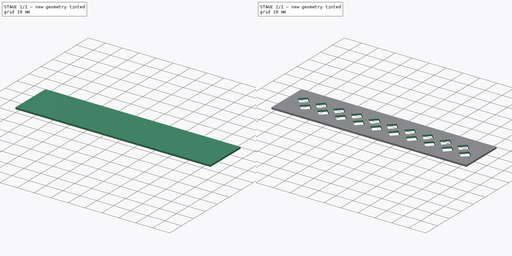
[diagram: build sequence overview — one tinted view per stage of 2, left to right]
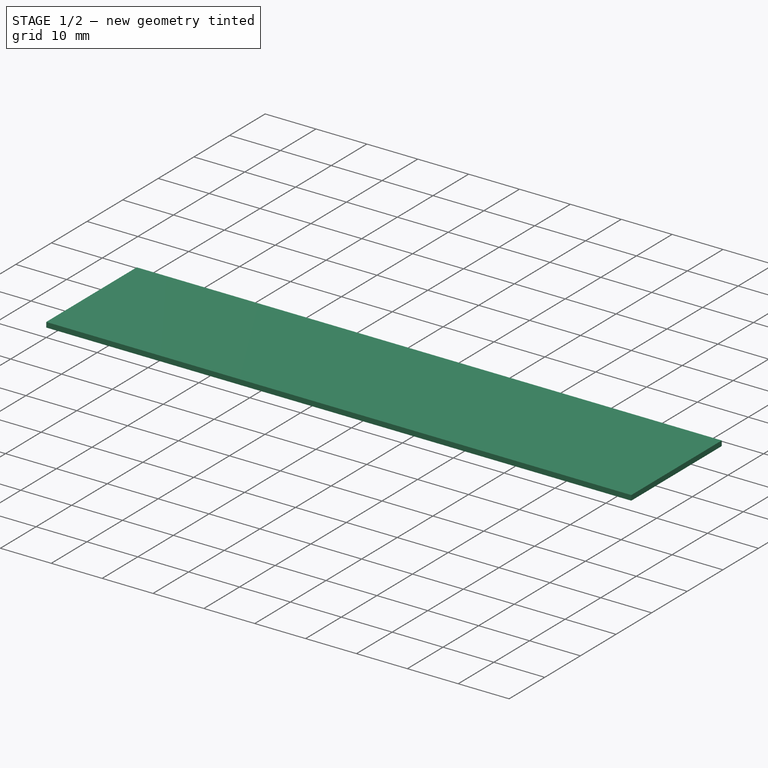
[diagram: stage 1 of 2 — iso view after this stage's code; geometry added in this stage tinted green]
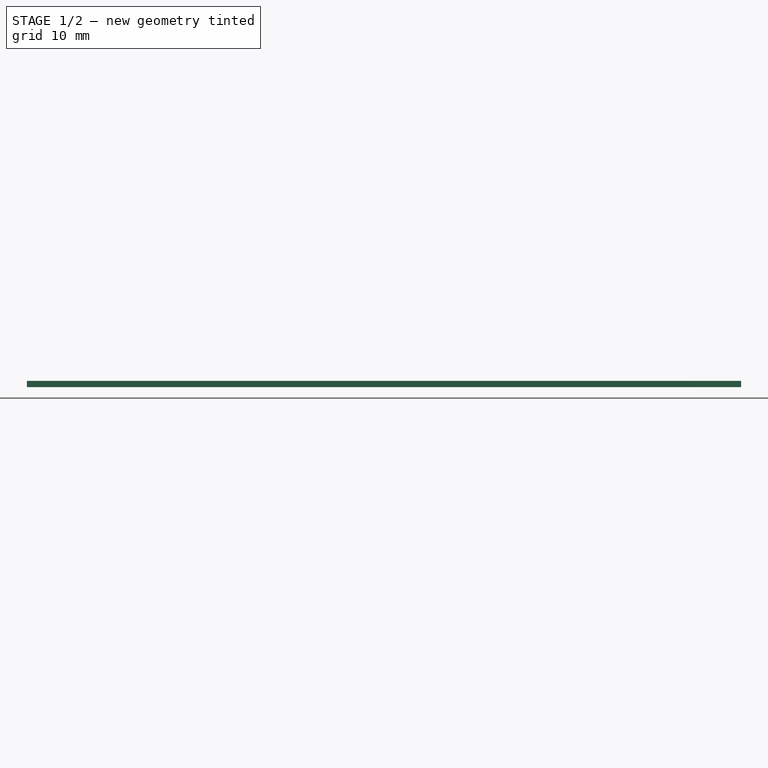
[diagram: stage 1 of 2 — front view after this stage's code; geometry added in this stage tinted green]
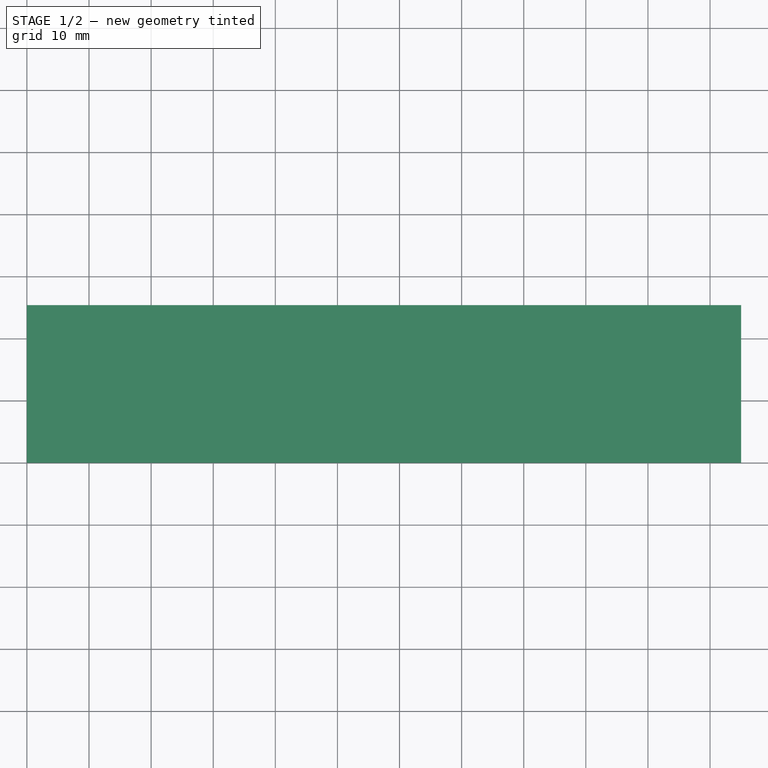
[diagram: stage 1 of 2 — top view after this stage's code; geometry added in this stage tinted green]
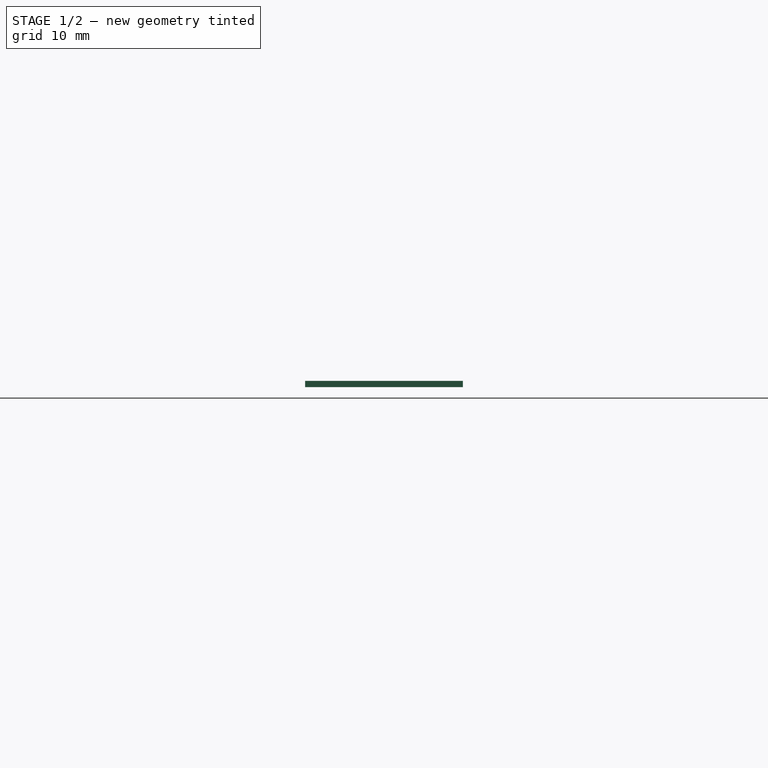
[diagram: stage 1 of 2 — right view after this stage's code; geometry added in this stage tinted green]
FCSTD DOCUMENT  (FreeCAD 0.17R13522 (Git))
Label: SD105
License: All rights reserved
LicenseURL: http://en.wikipedia.org/wiki/All_rights_reserved
objects: Part::Box×1, PartDesign::FeatureBase×1, Sketcher::SketchObject×1, PartDesign::Pocket×1, PartDesign::Body×1
note: 6 computed .brp shape members not serialized (recipe doc carries the construction recipe); baked Part::Feature solids carry a one-line shape summary decoded from their .brp

FEATURE [Part::Box] Box  label="Cube"
  AttacherType = Attacher::AttachEngine3D
  Height = 1
  Length = 115
  Width = 25.4
FEATURE [PartDesign::FeatureBase] BaseFeature
  BaseFeature = -> Box
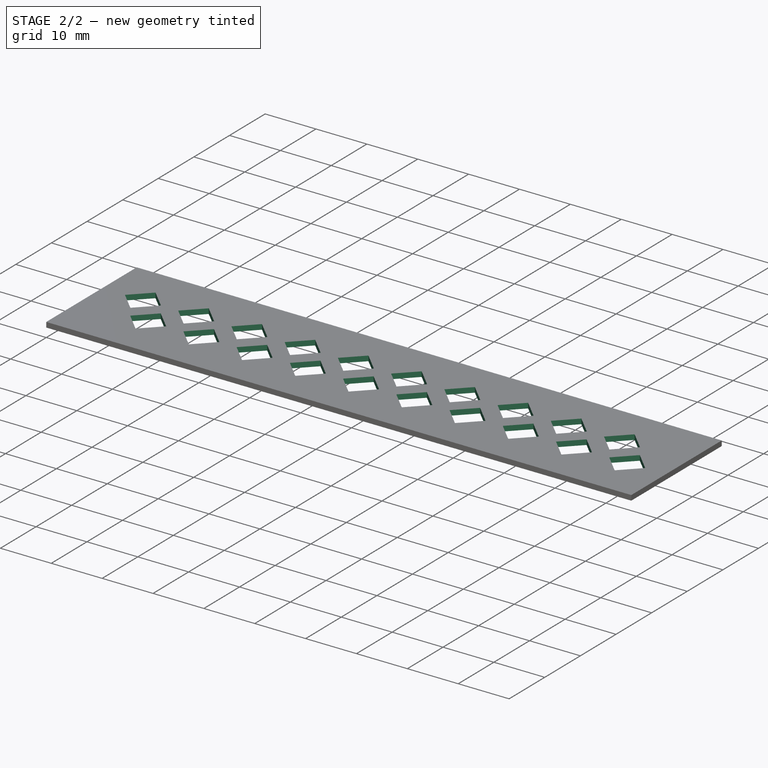
[diagram: stage 2 of 2 — iso view after this stage's code; geometry added in this stage tinted green]
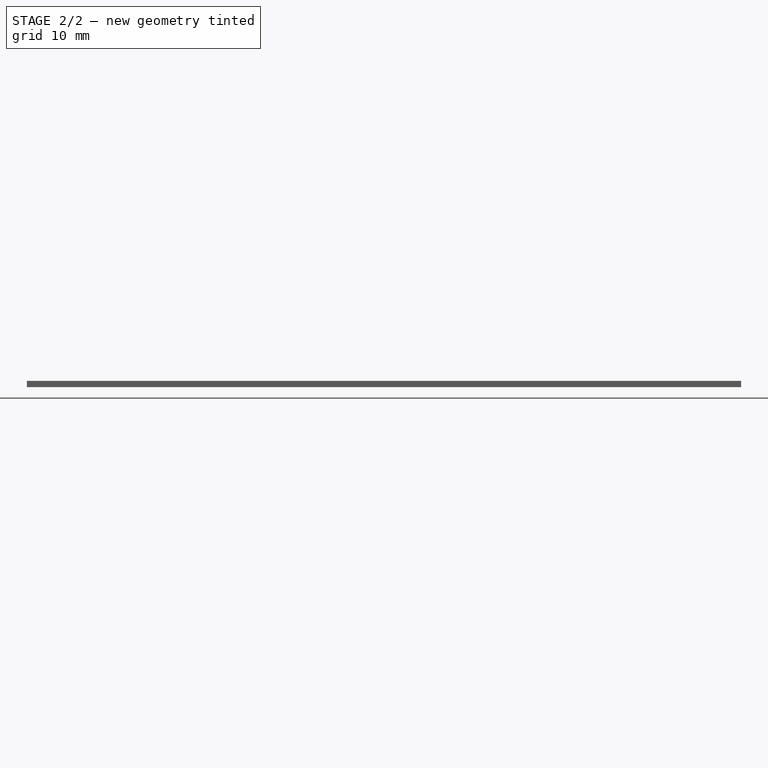
[diagram: stage 2 of 2 — front view after this stage's code; geometry added in this stage tinted green]
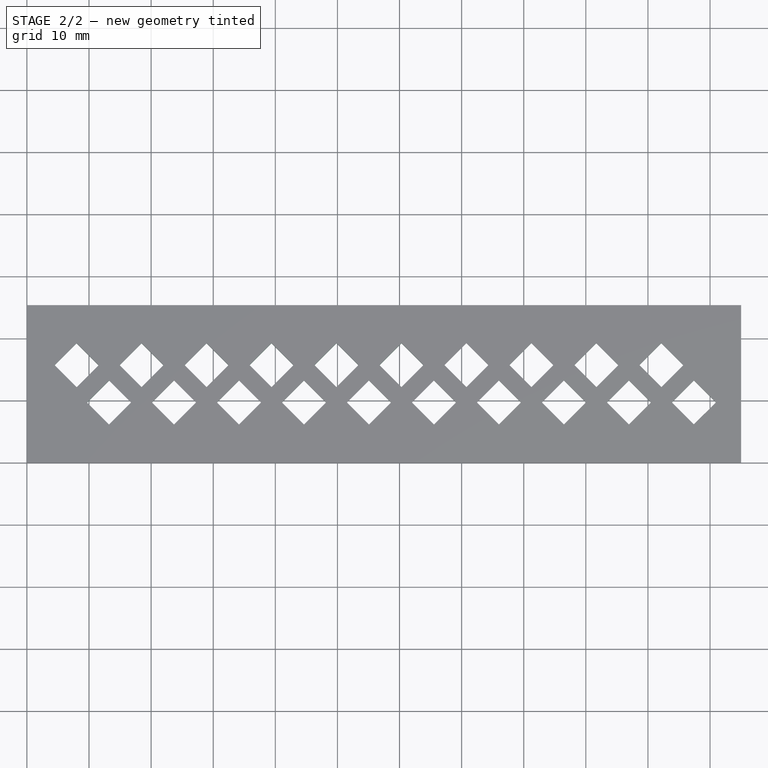
[diagram: stage 2 of 2 — top view after this stage's code; geometry added in this stage tinted green]
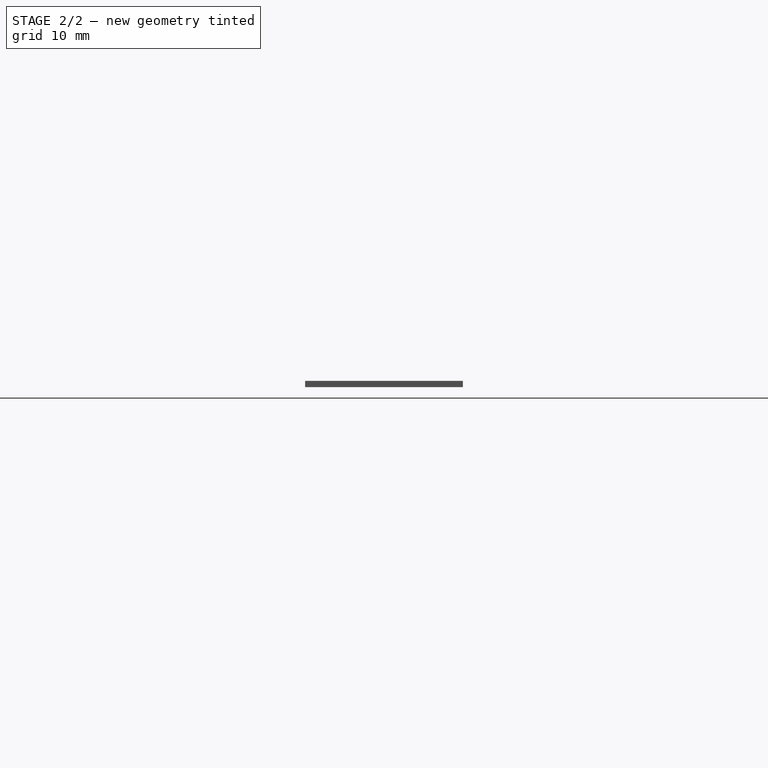
[diagram: stage 2 of 2 — right view after this stage's code; geometry added in this stage tinted green]
FEATURE [Sketcher::SketchObject] Sketch
  MapMode = 5
  Placement = pos=(0,0,1) rot=(0,0,1;0rad)
  Support = -> [BaseFeature]
  sketch-geometry (118):
    g0: LineSegment StartX=8 StartY=12.1813 StartZ=0 EndX=11.5355 EndY=15.7168 EndZ=0
    g1: LineSegment StartX=11.5355 StartY=15.7168 StartZ=0 EndX=8 EndY=19.2524 EndZ=0
    g2: LineSegment StartX=8 StartY=19.2524 StartZ=0 EndX=4.46447 EndY=15.7168 EndZ=0
    g3: LineSegment StartX=4.46447 StartY=15.7168 StartZ=0 EndX=8 EndY=12.1813 EndZ=0
    g4: Circle [constr] CenterX=8 CenterY=15.7168 CenterZ=0 NormalX=0 NormalY=0 NormalZ=1 AngleXU=0 Radius=3.53553
    g5: LineSegment StartX=18.4625 StartY=12.1831 StartZ=0 EndX=21.998 EndY=15.7186 EndZ=0
    g6: LineSegment StartX=21.998 StartY=15.7186 StartZ=0 EndX=18.4625 EndY=19.2541 EndZ=0
    g7: LineSegment StartX=18.4625 StartY=19.2541 StartZ=0 EndX=14.927 EndY=15.7186 EndZ=0
    g8: LineSegment StartX=14.927 StartY=15.7186 StartZ=0 EndX=18.4625 EndY=12.1831 EndZ=0
    g9: Circle [constr] CenterX=18.4625 CenterY=15.7186 CenterZ=0 NormalX=0 NormalY=0 NormalZ=1 AngleXU=0 Radius=3.53553
    g10: LineSegment [constr] StartX=8 StartY=12.1813 StartZ=0 EndX=18.4625 EndY=12.1831 EndZ=0
    g11: LineSegment StartX=28.925 StartY=12.1848 StartZ=0 EndX=32.4605 EndY=15.7203 EndZ=0
    g12: LineSegment StartX=32.4605 StartY=15.7203 StartZ=0 EndX=28.925 EndY=19.2559 EndZ=0
    g13: LineSegment StartX=28.925 StartY=19.2559 StartZ=0 EndX=25.3895 EndY=15.7203 EndZ=0
    g14: LineSegment StartX=25.3895 StartY=15.7203 StartZ=0 EndX=28.925 EndY=12.1848 EndZ=0
    g15: Circle [constr] CenterX=28.925 CenterY=15.7203 CenterZ=0 NormalX=0 NormalY=0 NormalZ=1 AngleXU=0 Radius=3.53553
    g16: LineSegment [constr] StartX=18.4625 StartY=12.1831 StartZ=0 EndX=28.925 EndY=12.1848 EndZ=0
    g17: LineSegment StartX=39.3875 StartY=12.1866 StartZ=0 EndX=42.923 EndY=15.7221 EndZ=0
    g18: LineSegment StartX=42.923 StartY=15.7221 StartZ=0 EndX=39.3875 EndY=19.2576 EndZ=0
    g19: LineSegment StartX=39.3875 StartY=19.2576 StartZ=0 EndX=35.852 EndY=15.7221 EndZ=0
    g20: LineSegment StartX=35.852 StartY=15.7221 StartZ=0 EndX=39.3875 EndY=12.1866 EndZ=0
    g21: Circle [constr] CenterX=39.3875 CenterY=15.7221 CenterZ=0 NormalX=0 NormalY=0 NormalZ=1 AngleXU=0 Radius=3.53553
    g22: LineSegment [constr] StartX=28.925 StartY=12.1848 StartZ=0 EndX=39.3875 EndY=12.1866 EndZ=0
    g23: LineSegment StartX=49.85 StartY=12.1883 StartZ=0 EndX=53.3855 EndY=15.7239 EndZ=0
    g24: LineSegment StartX=53.3855 StartY=15.7239 StartZ=0 EndX=49.85 EndY=19.2594 EndZ=0
    g25: LineSegment StartX=49.85 StartY=19.2594 StartZ=0 EndX=46.3145 EndY=15.7239 EndZ=0
    g26: LineSegment StartX=46.3145 StartY=15.7239 StartZ=0 EndX=49.85 EndY=12.1883 EndZ=0
    g27: Circle [constr] CenterX=49.85 CenterY=15.7239 CenterZ=0 NormalX=0 NormalY=0 NormalZ=1 AngleXU=0 Radius=3.53553
    g28: LineSegment [constr] StartX=39.3875 StartY=12.1866 StartZ=0 EndX=49.85 EndY=12.1883 EndZ=0
    g29: LineSegment StartX=60.3125 StartY=12.1901 StartZ=0 EndX=63.848 EndY=15.7256 EndZ=0
    g30: LineSegment StartX=63.848 StartY=15.7256 StartZ=0 EndX=60.3125 EndY=19.2612 EndZ=0
    g31: LineSegment StartX=60.3125 StartY=19.2612 StartZ=0 EndX=56.777 EndY=15.7256 EndZ=0
    g32: LineSegment StartX=56.777 StartY=15.7256 StartZ=0 EndX=60.3125 EndY=12.1901 EndZ=0
    g33: Circle [constr] CenterX=60.3125 CenterY=15.7256 CenterZ=0 NormalX=0 NormalY=0 NormalZ=1 AngleXU=0 Radius=3.53553
    g34: LineSegment [constr] StartX=49.85 StartY=12.1883 StartZ=0 EndX=60.3125 EndY=12.1901 EndZ=0
    g35: LineSegment StartX=70.775 StartY=12.1919 StartZ=0 EndX=74.3105 EndY=15.7274 EndZ=0
    g36: LineSegment StartX=74.3105 StartY=15.7274 StartZ=0 EndX=70.775 EndY=19.2629 EndZ=0
    g37: LineSegment StartX=70.775 StartY=19.2629 StartZ=0 EndX=67.2394 EndY=15.7274 EndZ=0
    g38: LineSegment StartX=67.2394 StartY=15.7274 StartZ=0 EndX=70.775 EndY=12.1919 EndZ=0
    g39: Circle [constr] CenterX=70.775 CenterY=15.7274 CenterZ=0 NormalX=0 NormalY=0 NormalZ=1 AngleXU=0 Radius=3.53553
    g40: LineSegment [constr] StartX=60.3125 StartY=12.1901 StartZ=0 EndX=70.775 EndY=12.1919 EndZ=0
    g41: LineSegment StartX=81.2375 StartY=12.1936 StartZ=0 EndX=84.773 EndY=15.7292 EndZ=0
    g42: LineSegment StartX=84.773 StartY=15.7292 StartZ=0 EndX=81.2375 EndY=19.2647 EndZ=0
    g43: LineSegment StartX=81.2375 StartY=19.2647 StartZ=0 EndX=77.7019 EndY=15.7292 EndZ=0
    g44: LineSegment StartX=77.7019 StartY=15.7292 StartZ=0 EndX=81.2375 EndY=12.1936 EndZ=0
    g45: Circle [constr] CenterX=81.2375 CenterY=15.7292 CenterZ=0 NormalX=0 NormalY=0 NormalZ=1 AngleXU=0 Radius=3.53553
    g46: LineSegment [constr] StartX=70.775 StartY=12.1919 StartZ=0 EndX=81.2375 EndY=12.1936 EndZ=0
    g47: LineSegment StartX=91.7 StartY=12.1954 StartZ=0 EndX=95.2355 EndY=15.7309 EndZ=0
    g48: LineSegment StartX=95.2355 StartY=15.7309 StartZ=0 EndX=91.7 EndY=19.2665 EndZ=0
    g49: LineSegment StartX=91.7 StartY=19.2665 StartZ=0 EndX=88.1644 EndY=15.7309 EndZ=0
    g50: LineSegment StartX=88.1644 StartY=15.7309 StartZ=0 EndX=91.7 EndY=12.1954 EndZ=0
    g51: Circle [constr] CenterX=91.7 CenterY=15.7309 CenterZ=0 NormalX=0 NormalY=0 NormalZ=1 AngleXU=0 Radius=3.53553
    g52: LineSegment [constr] StartX=81.2375 StartY=12.1936 StartZ=0 EndX=91.7 EndY=12.1954 EndZ=0
    g53: LineSegment StartX=102.162 StartY=12.1971 StartZ=0 EndX=105.698 EndY=15.7327 EndZ=0
    g54: LineSegment StartX=105.698 StartY=15.7327 StartZ=0 EndX=102.162 EndY=19.2682 EndZ=0
    g55: LineSegment StartX=102.162 StartY=19.2682 StartZ=0 EndX=98.6269 EndY=15.7327 EndZ=0
    g56: LineSegment StartX=98.6269 StartY=15.7327 StartZ=0 EndX=102.162 EndY=12.1971 EndZ=0
    g57: Circle [constr] CenterX=102.162 CenterY=15.7327 CenterZ=0 NormalX=0 NormalY=0 NormalZ=1 AngleXU=0 Radius=3.53553
    g58: LineSegment [constr] StartX=91.7 StartY=12.1954 StartZ=0 EndX=102.162 EndY=12.1971 EndZ=0
    g59: LineSegment StartX=13.2325 StartY=6.17185 StartZ=0 EndX=16.7681 EndY=9.70739 EndZ=0
    g60: LineSegment StartX=16.7681 StartY=9.70739 StartZ=0 EndX=13.2325 EndY=13.2429 EndZ=0
    g61: LineSegment StartX=13.2325 StartY=13.2429 StartZ=0 EndX=9.697 EndY=9.70739 EndZ=0
    g62: LineSegment StartX=9.697 StartY=9.70739 StartZ=0 EndX=13.2325 EndY=6.17185 EndZ=0
    g63: Circle [constr] CenterX=13.2325 CenterY=9.70739 CenterZ=0 NormalX=0 NormalY=0 NormalZ=1 AngleXU=0 Radius=3.53553
    g64: LineSegment StartX=23.695 StartY=6.17361 StartZ=0 EndX=27.2306 EndY=9.70915 EndZ=0
    g65: LineSegment StartX=27.2306 StartY=9.70915 StartZ=0 EndX=23.695 EndY=13.2447 EndZ=0
    g66: LineSegment StartX=23.695 StartY=13.2447 StartZ=0 EndX=20.1595 EndY=9.70915 EndZ=0
    g67: LineSegment StartX=20.1595 StartY=9.70915 StartZ=0 EndX=23.695 EndY=6.17361 EndZ=0
    g68: Circle [constr] CenterX=23.695 CenterY=9.70915 CenterZ=0 NormalX=0 NormalY=0 NormalZ=1 AngleXU=0 Radius=3.53553
    g69: LineSegment [constr] StartX=13.2325 StartY=6.17185 StartZ=0 EndX=23.695 EndY=6.17361 EndZ=0
    g70: LineSegment StartX=34.1575 StartY=6.17538 StartZ=0 EndX=37.6931 EndY=9.71091 EndZ=0
    g71: LineSegment StartX=37.6931 StartY=9.71091 StartZ=0 EndX=34.1575 EndY=13.2464 EndZ=0
    g72: LineSegment StartX=34.1575 StartY=13.2464 StartZ=0 EndX=30.622 EndY=9.71091 EndZ=0
    g73: LineSegment StartX=30.622 StartY=9.71091 StartZ=0 EndX=34.1575 EndY=6.17538 EndZ=0
    g74: Circle [constr] CenterX=34.1575 CenterY=9.71091 CenterZ=0 NormalX=0 NormalY=0 NormalZ=1 AngleXU=0 Radius=3.53553
    g75: LineSegment [constr] StartX=23.695 StartY=6.17361 StartZ=0 EndX=34.1575 EndY=6.17538 EndZ=0
    g76: LineSegment StartX=44.62 StartY=6.17714 StartZ=0 EndX=48.1556 EndY=9.71267 EndZ=0
    g77: LineSegment StartX=48.1556 StartY=9.71267 StartZ=0 EndX=44.62 EndY=13.2482 EndZ=0
    g78: LineSegment StartX=44.62 StartY=13.2482 StartZ=0 EndX=41.0845 EndY=9.71267 EndZ=0
    g79: LineSegment StartX=41.0845 StartY=9.71267 StartZ=0 EndX=44.62 EndY=6.17714 EndZ=0
    g80: Circle [constr] CenterX=44.62 CenterY=9.71267 CenterZ=0 NormalX=0 NormalY=0 NormalZ=1 AngleXU=0 Radius=3.53553
    g81: LineSegment [constr] StartX=34.1575 StartY=6.17538 StartZ=0 EndX=44.62 EndY=6.17714 EndZ=0
    g82: LineSegment StartX=55.0825 StartY=6.1789 StartZ=0 EndX=58.6181 EndY=9.71443 EndZ=0
    g83: LineSegment StartX=58.6181 StartY=9.71443 StartZ=0 EndX=55.0825 EndY=13.25 EndZ=0
    g84: LineSegment StartX=55.0825 StartY=13.25 StartZ=0 EndX=51.547 EndY=9.71443 EndZ=0
    g85: LineSegment StartX=51.547 StartY=9.71443 StartZ=0 EndX=55.0825 EndY=6.1789 EndZ=0
    g86: Circle [constr] CenterX=55.0825 CenterY=9.71443 CenterZ=0 NormalX=0 NormalY=0 NormalZ=1 AngleXU=0 Radius=3.53553
    g87: LineSegment [constr] StartX=44.62 StartY=6.17714 StartZ=0 EndX=55.0825 EndY=6.1789 EndZ=0
    g88: LineSegment StartX=65.545 StartY=6.18066 StartZ=0 EndX=69.0806 EndY=9.7162 EndZ=0
    g89: LineSegment StartX=69.0806 StartY=9.7162 StartZ=0 EndX=65.545 EndY=13.2517 EndZ=0
    g90: LineSegment StartX=65.545 StartY=13.2517 StartZ=0 EndX=62.0095 EndY=9.7162 EndZ=0
    g91: LineSegment StartX=62.0095 StartY=9.7162 StartZ=0 EndX=65.545 EndY=6.18066 EndZ=0
    g92: Circle [constr] CenterX=65.545 CenterY=9.7162 CenterZ=0 NormalX=0 NormalY=0 NormalZ=1 AngleXU=0 Radius=3.53553
    g93: LineSegment [constr] StartX=55.0825 StartY=6.1789 StartZ=0 EndX=65.545 EndY=6.18066 EndZ=0
    g94: LineSegment StartX=76.0075 StartY=6.18242 StartZ=0 EndX=79.5431 EndY=9.71796 EndZ=0
    g95: LineSegment StartX=79.5431 StartY=9.71796 StartZ=0 EndX=76.0075 EndY=13.2535 EndZ=0
    g96: LineSegment StartX=76.0075 StartY=13.2535 StartZ=0 EndX=72.472 EndY=9.71796 EndZ=0
    g97: LineSegment StartX=72.472 StartY=9.71796 StartZ=0 EndX=76.0075 EndY=6.18242 EndZ=0
    g98: Circle [constr] CenterX=76.0075 CenterY=9.71796 CenterZ=0 NormalX=0 NormalY=0 NormalZ=1 AngleXU=0 Radius=3.53553
    g99: LineSegment [constr] StartX=65.545 StartY=6.18066 StartZ=0 EndX=76.0075 EndY=6.18242 EndZ=0
    g100: LineSegment StartX=86.47 StartY=6.18419 StartZ=0 EndX=90.0055 EndY=9.71972 EndZ=0
    g101: LineSegment StartX=90.0055 StartY=9.71972 StartZ=0 EndX=86.47 EndY=13.2553 EndZ=0
    g102: LineSegment StartX=86.47 StartY=13.2553 StartZ=0 EndX=82.9345 EndY=9.71972 EndZ=0
    g103: LineSegment StartX=82.9345 StartY=9.71972 StartZ=0 EndX=86.47 EndY=6.18419 EndZ=0
    g104: Circle [constr] CenterX=86.47 CenterY=9.71972 CenterZ=0 NormalX=0 NormalY=0 NormalZ=1 AngleXU=0 Radius=3.53553
    g105: LineSegment [constr] StartX=76.0075 StartY=6.18242 StartZ=0 EndX=86.47 EndY=6.18419 EndZ=0
    g106: LineSegment StartX=96.9325 StartY=6.18595 StartZ=0 EndX=100.468 EndY=9.72148 EndZ=0
    g107: LineSegment StartX=100.468 StartY=9.72148 StartZ=0 EndX=96.9325 EndY=13.257 EndZ=0
    g108: LineSegment StartX=96.9325 StartY=13.257 StartZ=0 EndX=93.397 EndY=9.72148 EndZ=0
    g109: LineSegment StartX=93.397 StartY=9.72148 StartZ=0 EndX=96.9325 EndY=6.18595 EndZ=0
    g110: Circle [constr] CenterX=96.9325 CenterY=9.72148 CenterZ=0 NormalX=0 NormalY=0 NormalZ=1 AngleXU=0 Radius=3.53553
    g111: LineSegment [constr] StartX=86.47 StartY=6.18419 StartZ=0 EndX=96.9325 EndY=6.18595 EndZ=0
    g112: LineSegment StartX=107.395 StartY=6.18771 StartZ=0 EndX=110.931 EndY=9.72324 EndZ=0
    g113: LineSegment StartX=110.931 StartY=9.72324 StartZ=0 EndX=107.395 EndY=13.2588 EndZ=0
    g114: LineSegment StartX=107.395 StartY=13.2588 StartZ=0 EndX=103.859 EndY=9.72324 EndZ=0
    g115: LineSegment StartX=103.859 StartY=9.72324 StartZ=0 EndX=107.395 EndY=6.18771 EndZ=0
    g116: Circle [constr] CenterX=107.395 CenterY=9.72324 CenterZ=0 NormalX=0 NormalY=0 NormalZ=1 AngleXU=0 Radius=3.53553
    g117: LineSegment [constr] StartX=96.9325 StartY=6.18595 StartZ=0 EndX=107.395 EndY=6.18771 EndZ=0
  constraints (375):
    c: Coincident(g0,g1)
    c: Coincident(g1,g2)
    c: Coincident(g2,g3)
    c: Coincident(g3,g0)
    c: Equal(g0,g1)
    c: Equal(g0,g2)
    c: Equal(g0,g3)
    c: PointOnObject(g0,g4)
    c: PointOnObject(g1,g4)
    c: PointOnObject(g2,g4)
    c: PointOnObject(g3,g4)
    c: Distance(g2) = 5
    c: Equal(g2,g1)
    c: Equal(g0,g3)
    c: Angle(g0) = 0.785398
    c: Coincident(g5,g6)
    c: Coincident(g6,g7)
    c: Coincident(g7,g8)
    c: Coincident(g8,g5)
    c: Equal(g5,g6)
    c: Equal(g5,g7)
    c: Equal(g5,g8)
    c: PointOnObject(g5,g9)
    c: PointOnObject(g6,g9)
    c: PointOnObject(g7,g9)
    c: PointOnObject(g8,g9)
    c: Equal(g2,g7) = 5
    c: Equal(g7,g6)
    c: Equal(g5,g8)
    c: Parallel(g0,g5) = 0.785398
    c: Coincident(g0,g10)
    c: Coincident(g5,g10)
    c: Distance(g10) = 10.4625
    c: Angle(g10) = 0.000168411
    c: Coincident(g11,g12)
    c: Coincident(g12,g13)
    c: Coincident(g13,g14)
    c: Coincident(g14,g11)
    c: Equal(g11,g12)
    c: Equal(g11,g13)
    c: Equal(g11,g14)
    c: PointOnObject(g11,g15)
    c: PointOnObject(g12,g15)
    c: PointOnObject(g13,g15)
    c: PointOnObject(g14,g15)
    c: Equal(g2,g13) = 5
    c: Equal(g13,g12)
    c: Equal(g11,g14)
    c: Parallel(g0,g11) = 0.785398
    c: Coincident(g5,g16)
    c: Coincident(g11,g16)
    c: Equal(g10,g16)
    c: Parallel(g16,g10)
    c: Coincident(g17,g18)
    c: Coincident(g18,g19)
    c: Coincident(g19,g20)
    c: Coincident(g20,g17)
    c: Equal(g17,g18)
    c: Equal(g17,g19)
    c: Equal(g17,g20)
    c: PointOnObject(g17,g21)
    c: PointOnObject(g18,g21)
    c: PointOnObject(g19,g21)
    c: PointOnObject(g20,g21)
    c: Equal(g2,g19) = 5
    c: Equal(g19,g18)
    c: Equal(g17,g20)
    c: Parallel(g0,g17) = 0.785398
    c: Coincident(g11,g22)
    c: Coincident(g17,g22)
    c: Equal(g10,g22)
    c: Parallel(g22,g10)
    c: Coincident(g23,g24)
    c: Coincident(g24,g25)
    c: Coincident(g25,g26)
    c: Coincident(g26,g23)
    c: Equal(g23,g24)
    c: Equal(g23,g25)
    c: Equal(g23,g26)
    c: PointOnObject(g23,g27)
    c: PointOnObject(g24,g27)
    c: PointOnObject(g25,g27)
    c: PointOnObject(g26,g27)
    c: Equal(g2,g25) = 5
    c: Equal(g25,g24)
    c: Equal(g23,g26)
    c: Parallel(g0,g23) = 0.785398
    c: Coincident(g17,g28)
    c: Coincident(g23,g28)
    c: Equal(g10,g28)
    c: Parallel(g28,g10)
    c: Coincident(g29,g30)
    c: Coincident(g30,g31)
    c: Coincident(g31,g32)
    c: Coincident(g32,g29)
    c: Equal(g29,g30)
    c: Equal(g29,g31)
    c: Equal(g29,g32)
    c: PointOnObject(g29,g33)
    c: PointOnObject(g30,g33)
    c: PointOnObject(g31,g33)
    c: PointOnObject(g32,g33)
    c: Equal(g2,g31) = 5
    c: Equal(g31,g30)
    c: Equal(g29,g32)
    c: Parallel(g0,g29) = 0.785398
    c: Coincident(g23,g34)
    c: Coincident(g29,g34)
    c: Equal(g10,g34)
    c: Parallel(g34,g10)
    c: Coincident(g35,g36)
    c: Coincident(g36,g37)
    c: Coincident(g37,g38)
    c: Coincident(g38,g35)
    c: Equal(g35,g36)
    c: Equal(g35,g37)
    c: Equal(g35,g38)
    c: PointOnObject(g35,g39)
    c: PointOnObject(g36,g39)
    c: PointOnObject(g37,g39)
    c: PointOnObject(g38,g39)
    c: Equal(g2,g37) = 5
    c: Equal(g37,g36)
    c: Equal(g35,g38)
    c: Parallel(g0,g35) = 0.785398
    c: Coincident(g29,g40)
    c: Coincident(g35,g40)
    c: Equal(g10,g40)
    c: Parallel(g40,g10)
    c: Coincident(g41,g42)
    c: Coincident(g42,g43)
    c: Coincident(g43,g44)
    c: Coincident(g44,g41)
    c: Equal(g41,g42)
    c: Equal(g41,g43)
    c: Equal(g41,g44)
    c: PointOnObject(g41,g45)
    c: PointOnObject(g42,g45)
    c: PointOnObject(g43,g45)
    c: PointOnObject(g44,g45)
    c: Equal(g2,g43) = 5
    c: Equal(g43,g42)
    c: Equal(g41,g44)
    c: Parallel(g0,g41) = 0.785398
    c: Coincident(g35,g46)
    c: Coincident(g41,g46)
    c: Equal(g10,g46)
    c: Parallel(g46,g10)
    c: Coincident(g47,g48)
    c: Coincident(g48,g49)
    c: Coincident(g49,g50)
    c: Coincident(g50,g47)
    c: Equal(g47,g48)
    c: Equal(g47,g49)
    c: Equal(g47,g50)
    c: PointOnObject(g47,g51)
    c: PointOnObject(g48,g51)
    c: PointOnObject(g49,g51)
    c: PointOnObject(g50,g51)
    c: Equal(g2,g49) = 5
    c: Equal(g49,g48)
    c: Equal(g47,g50)
    c: Parallel(g0,g47) = 0.785398
    c: Coincident(g41,g52)
    c: Coincident(g47,g52)
    c: Equal(g10,g52)
    c: Parallel(g52,g10)
    c: Coincident(g53,g54)
    c: Coincident(g54,g55)
    c: Coincident(g55,g56)
    c: Coincident(g56,g53)
    c: Equal(g53,g54)
    c: Equal(g53,g55)
    c: Equal(g53,g56)
    c: PointOnObject(g53,g57)
    c: PointOnObject(g54,g57)
    c: PointOnObject(g55,g57)
    c: PointOnObject(g56,g57)
    c: Equal(g2,g55) = 5
    c: Equal(g55,g54)
    c: Equal(g53,g56)
    c: Parallel(g0,g53) = 0.785398
    c: Coincident(g47,g58)
    c: Coincident(g53,g58)
    c: Equal(g10,g58)
    c: Parallel(g58,g10)
    c: Coincident(g59,g60)
    c: Coincident(g60,g61)
    c: Coincident(g61,g62)
    c: Coincident(g62,g59)
    c: Equal(g59,g60)
    c: Equal(g59,g61)
    c: Equal(g59,g62)
    c: PointOnObject(g59,g63)
    c: PointOnObject(g60,g63)
    c: PointOnObject(g61,g63)
    c: PointOnObject(g62,g63)
    c: Equal(g2,g61) = 5
    c: Equal(g61,g60)
    c: Equal(g59,g62)
    c: Parallel(g0,g59) = 0.785398
    c: Coincident(g64,g65)
    c: Coincident(g65,g66)
    c: Coincident(g66,g67)
    c: Coincident(g67,g64)
    c: Equal(g64,g65)
    c: Equal(g64,g66)
    c: Equal(g64,g67)
    c: PointOnObject(g64,g68)
    c: PointOnObject(g65,g68)
    c: PointOnObject(g66,g68)
    c: PointOnObject(g67,g68)
    c: Equal(g61,g66) = 5
    c: Equal(g66,g65)
    c: Equal(g64,g67)
    c: Parallel(g59,g64) = 0.785398
    c: Coincident(g59,g69)
    c: Coincident(g64,g69)
    c: Equal(g10,g69) = 10.4625
    c: Parallel(g10,g69) = 0.000168411
    c: Coincident(g70,g71)
    c: Coincident(g71,g72)
    c: Coincident(g72,g73)
    c: Coincident(g73,g70)
    c: Equal(g70,g71)
    c: Equal(g70,g72)
    c: Equal(g70,g73)
    c: PointOnObject(g70,g74)
    c: PointOnObject(g71,g74)
    c: PointOnObject(g72,g74)
    c: PointOnObject(g73,g74)
    c: Equal(g61,g72) = 5
    c: Equal(g72,g71)
    c: Equal(g70,g73)
    c: Parallel(g59,g70) = 0.785398
    c: Coincident(g64,g75)
    c: Coincident(g70,g75)
    c: Equal(g69,g75)
    c: Parallel(g75,g69)
    c: Coincident(g76,g77)
    c: Coincident(g77,g78)
    c: Coincident(g78,g79)
    c: Coincident(g79,g76)
    c: Equal(g76,g77)
    c: Equal(g76,g78)
    c: Equal(g76,g79)
    c: PointOnObject(g76,g80)
    c: PointOnObject(g77,g80)
    c: PointOnObject(g78,g80)
    c: PointOnObject(g79,g80)
    c: Equal(g61,g78) = 5
    c: Equal(g78,g77)
    c: Equal(g76,g79)
    c: Parallel(g59,g76) = 0.785398
    c: Coincident(g70,g81)
    c: Coincident(g76,g81)
    c: Equal(g69,g81)
    c: Parallel(g81,g69)
    c: Coincident(g82,g83)
    c: Coincident(g83,g84)
    c: Coincident(g84,g85)
    c: Coincident(g85,g82)
    c: Equal(g82,g83)
    c: Equal(g82,g84)
    c: Equal(g82,g85)
    c: PointOnObject(g82,g86)
    c: PointOnObject(g83,g86)
    c: PointOnObject(g84,g86)
    c: PointOnObject(g85,g86)
    c: Equal(g61,g84) = 5
    c: Equal(g84,g83)
    c: Equal(g82,g85)
    c: Parallel(g59,g82) = 0.785398
    c: Coincident(g76,g87)
    c: Coincident(g82,g87)
    c: Equal(g69,g87)
    c: Parallel(g87,g69)
    c: Coincident(g88,g89)
    c: Coincident(g89,g90)
    c: Coincident(g90,g91)
    c: Coincident(g91,g88)
    c: Equal(g88,g89)
    c: Equal(g88,g90)
    c: Equal(g88,g91)
    c: PointOnObject(g88,g92)
    c: PointOnObject(g89,g92)
    c: PointOnObject(g90,g92)
    c: PointOnObject(g91,g92)
    c: Equal(g61,g90) = 5
    c: Equal(g90,g89)
    c: Equal(g88,g91)
    c: Parallel(g59,g88) = 0.785398
    c: Coincident(g82,g93)
    c: Coincident(g88,g93)
    c: Equal(g69,g93)
    c: Parallel(g93,g69)
    c: Coincident(g94,g95)
    c: Coincident(g95,g96)
    c: Coincident(g96,g97)
    c: Coincident(g97,g94)
    c: Equal(g94,g95)
    c: Equal(g94,g96)
    c: Equal(g94,g97)
    c: PointOnObject(g94,g98)
    c: PointOnObject(g95,g98)
    c: PointOnObject(g96,g98)
    c: PointOnObject(g97,g98)
    c: Equal(g61,g96) = 5
    c: Equal(g96,g95)
    c: Equal(g94,g97)
    c: Parallel(g59,g94) = 0.785398
    c: Coincident(g88,g99)
    c: Coincident(g94,g99)
    c: Equal(g69,g99)
    c: Parallel(g99,g69)
    c: Coincident(g100,g101)
    c: Coincident(g101,g102)
    c: Coincident(g102,g103)
    c: Coincident(g103,g100)
    c: Equal(g100,g101)
    c: Equal(g100,g102)
    c: Equal(g100,g103)
    c: PointOnObject(g100,g104)
    c: PointOnObject(g101,g104)
    c: PointOnObject(g102,g104)
    c: PointOnObject(g103,g104)
    c: Equal(g61,g102) = 5
    c: Equal(g102,g101)
    c: Equal(g100,g103)
    c: Parallel(g59,g100) = 0.785398
    c: Coincident(g94,g105)
    c: Coincident(g100,g105)
    c: Equal(g69,g105)
    c: Parallel(g105,g69)
    c: Coincident(g106,g107)
    c: Coincident(g107,g108)
    c: Coincident(g108,g109)
    c: Coincident(g109,g106)
    c: Equal(g106,g107)
    c: Equal(g106,g108)
    c: Equal(g106,g109)
    c: PointOnObject(g106,g110)
    c: PointOnObject(g107,g110)
    c: PointOnObject(g108,g110)
    c: PointOnObject(g109,g110)
    c: Equal(g61,g108) = 5
    c: Equal(g108,g107)
    c: Equal(g106,g109)
    c: Parallel(g59,g106) = 0.785398
    c: Coincident(g100,g111)
    c: Coincident(g106,g111)
    c: Equal(g69,g111)
    c: Parallel(g111,g69)
    c: Coincident(g112,g113)
    c: Coincident(g113,g114)
    c: Coincident(g114,g115)
    c: Coincident(g115,g112)
    c: Equal(g112,g113)
    c: Equal(g112,g114)
    c: Equal(g112,g115)
    c: PointOnObject(g112,g116)
    c: PointOnObject(g113,g116)
    c: PointOnObject(g114,g116)
    c: PointOnObject(g115,g116)
    c: Equal(g61,g114) = 5
    c: Equal(g114,g113)
    c: Equal(g112,g115)
    c: Parallel(g59,g112) = 0.785398
    c: Coincident(g106,g117)
    c: Coincident(g112,g117)
    c: Equal(g69,g117)
    c: Parallel(g117,g69)
    c: Distance(g0,g60) = 3
    c: DistanceX(g-1,g4) = 8
    c: Distance(g7,g60) = 3
FEATURE [PartDesign::Pocket] Pocket
  BaseFeature = -> BaseFeature
  Length = 5
  Length2 = 100
  Profile = -> Sketch
  Type = 0
FEATURE [PartDesign::Body] Body
  BaseFeature = -> Box
  Group = -> [BaseFeature,Sketch,Pocket]
  Origin = -> Origin
  Tip = -> Pocket
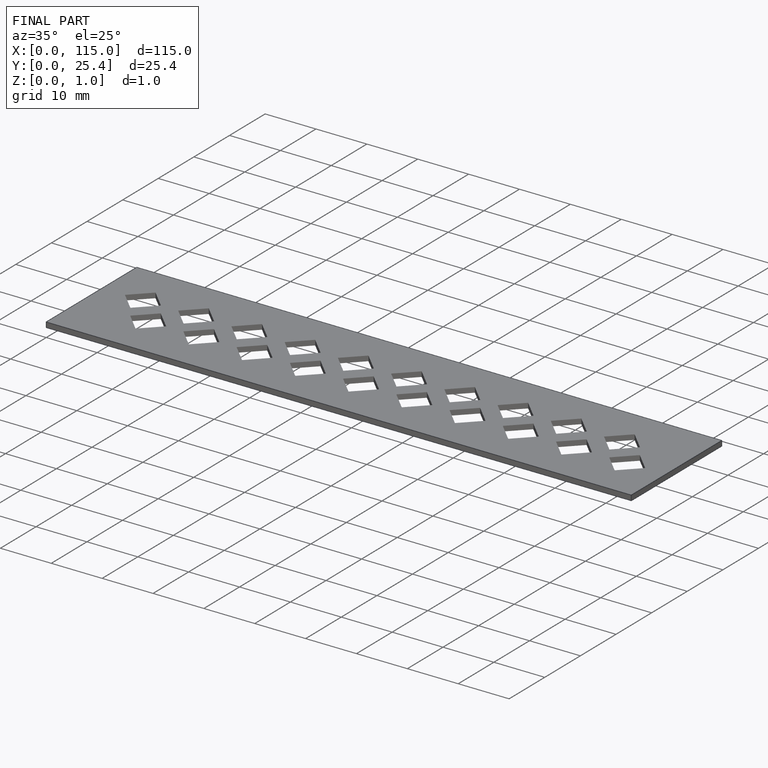
[diagram: finished part — iso view with bounding-box wireframe]
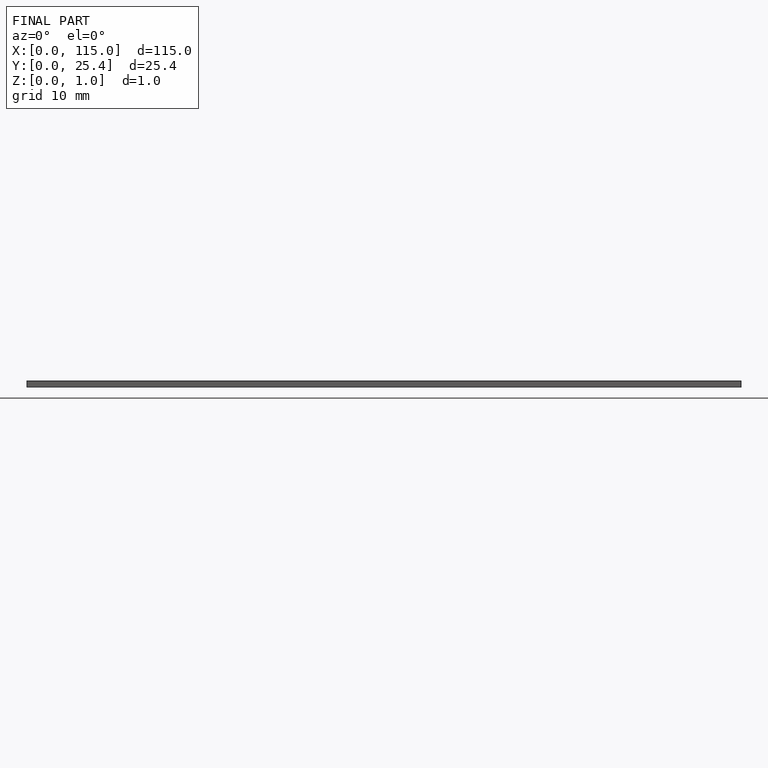
[diagram: finished part — front view with bounding-box wireframe]
